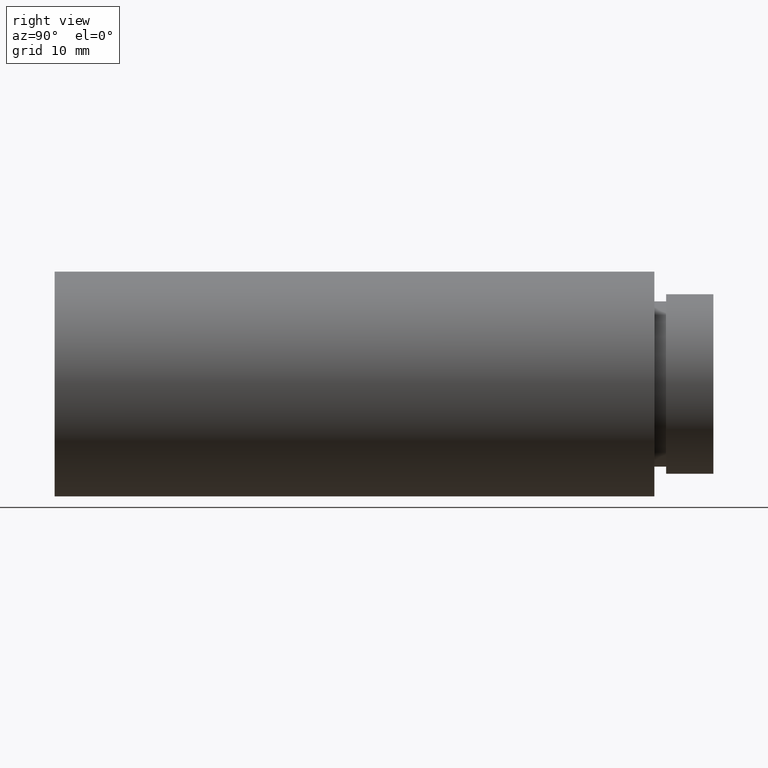
[diagram: clean part render]
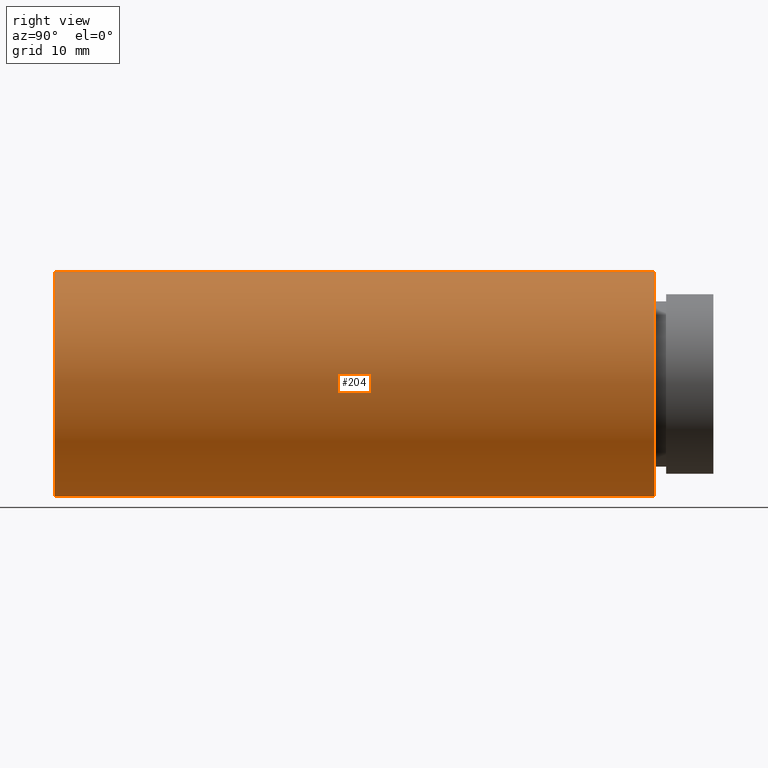
[diagram: same view with one face highlighted and labeled with its STEP entity id]
A machine part, right view. The second image highlights one B-rep face of the part: STEP entity #204.
In plain terms, the highlighted cylindrical surface (partial cylindrical patch) has radius 9.525 mm, axis along (-0, 1, -0).
Its self-contained STEP definition (entity closure, byte-faithful):
#2 = EDGE_LOOP ( 'NONE', ( #42, #206, #378, #75 ) ) ;
#6 = DIRECTION ( 'NONE',  ( -0.0000000000000000000, 1.000000000000000000, -0.0000000000000000000 ) ) ;
#20 = VECTOR ( 'NONE', #279, 1000.000000000000000 ) ;
#42 = ORIENTED_EDGE ( 'NONE', *, *, #557, .T. ) ;
#51 = DIRECTION ( 'NONE',  ( 0.0000000000000000000, 0.0000000000000000000, 1.000000000000000000 ) ) ;
#64 = VERTEX_POINT ( 'NONE', #548 ) ;
#67 = CYLINDRICAL_SURFACE ( 'NONE', #507, 9.525000000000019900 ) ;
#75 = ORIENTED_EDGE ( 'NONE', *, *, #172, .F. ) ;
#80 = VERTEX_POINT ( 'NONE', #218 ) ;
#98 = DIRECTION ( 'NONE',  ( -0.0000000000000000000, 1.000000000000000000, -0.0000000000000000000 ) ) ;
#122 = FACE_OUTER_BOUND ( 'NONE', #2, .T. ) ;
#135 = LINE ( 'NONE', #512, #20 ) ;
#141 = AXIS2_PLACEMENT_3D ( 'NONE', #472, #385, #431 ) ;
#150 = VECTOR ( 'NONE', #98, 1000.000000000000000 ) ;
#172 = EDGE_CURVE ( 'NONE', #80, #255, #135, .T. ) ;
#193 = CARTESIAN_POINT ( 'NONE',  ( 1.166476076187856400E-015, -2.775557561562891400E-014, -9.525000000000019900 ) ) ;
#198 = CARTESIAN_POINT ( 'NONE',  ( 1.166476076187856400E-015, 161.3761669434274500, -9.525000000000019900 ) ) ;
#204 = ADVANCED_FACE ( 'NONE', ( #122 ), #67, .T. ) ;
#206 = ORIENTED_EDGE ( 'NONE', *, *, #315, .T. ) ;
#218 = CARTESIAN_POINT ( 'NONE',  ( 0.0000000000000000000, -2.775557561562891400E-014, 9.525000000000019900 ) ) ;
#235 = AXIS2_PLACEMENT_3D ( 'NONE', #567, #622, #463 ) ;
#255 = VERTEX_POINT ( 'NONE', #328 ) ;
#266 = CIRCLE ( 'NONE', #235, 9.525000000000019900 ) ;
#279 = DIRECTION ( 'NONE',  ( -0.0000000000000000000, 1.000000000000000000, -0.0000000000000000000 ) ) ;
#315 = EDGE_CURVE ( 'NONE', #432, #64, #532, .T. ) ;
#328 = CARTESIAN_POINT ( 'NONE',  ( 0.0000000000000000000, 50.79999999999998300, 9.525000000000019900 ) ) ;
#378 = ORIENTED_EDGE ( 'NONE', *, *, #599, .F. ) ;
#385 = DIRECTION ( 'NONE',  ( -0.0000000000000000000, 1.000000000000000000, -0.0000000000000000000 ) ) ;
#416 = CARTESIAN_POINT ( 'NONE',  ( 0.0000000000000000000, 161.3761669434274500, 0.0000000000000000000 ) ) ;
#431 = DIRECTION ( 'NONE',  ( 0.0000000000000000000, 0.0000000000000000000, 1.000000000000000000 ) ) ;
#432 = VERTEX_POINT ( 'NONE', #193 ) ;
#463 = DIRECTION ( 'NONE',  ( 0.0000000000000000000, 0.0000000000000000000, 1.000000000000000000 ) ) ;
#472 = CARTESIAN_POINT ( 'NONE',  ( 0.0000000000000000000, -2.775557561562891400E-014, 0.0000000000000000000 ) ) ;
#507 = AXIS2_PLACEMENT_3D ( 'NONE', #416, #6, #51 ) ;
#512 = CARTESIAN_POINT ( 'NONE',  ( 0.0000000000000000000, 161.3761669434274500, 9.525000000000019900 ) ) ;
#532 = LINE ( 'NONE', #198, #150 ) ;
#548 = CARTESIAN_POINT ( 'NONE',  ( 1.166476076187856400E-015, 50.79999999999998300, -9.525000000000019900 ) ) ;
#557 = EDGE_CURVE ( 'NONE', #80, #432, #592, .T. ) ;
#567 = CARTESIAN_POINT ( 'NONE',  ( 0.0000000000000000000, 50.79999999999998300, 0.0000000000000000000 ) ) ;
#592 = CIRCLE ( 'NONE', #141, 9.525000000000019900 ) ;
#599 = EDGE_CURVE ( 'NONE', #255, #64, #266, .T. ) ;
#622 = DIRECTION ( 'NONE',  ( -0.0000000000000000000, 1.000000000000000000, -0.0000000000000000000 ) ) ;